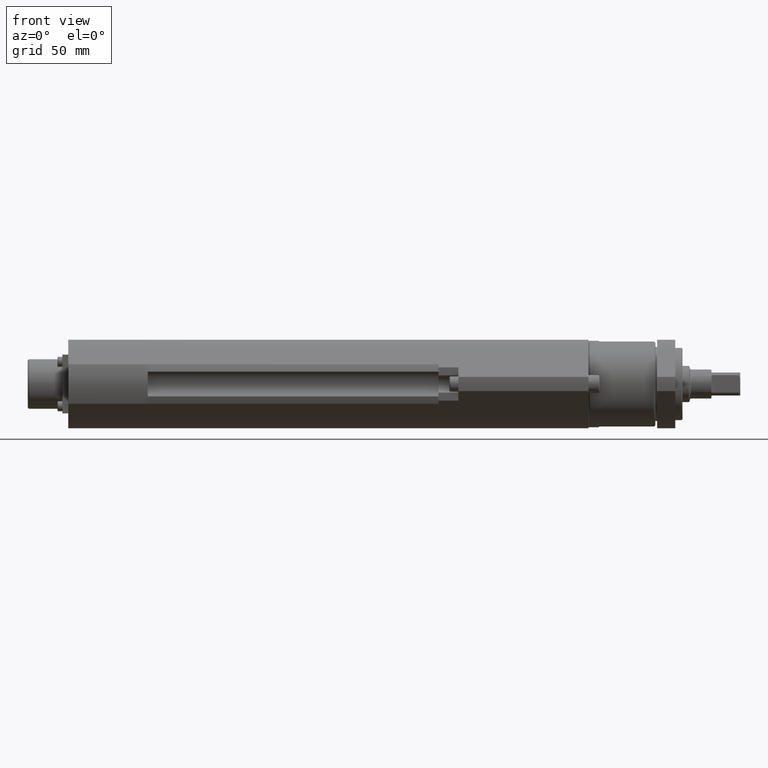
[diagram: clean part render]
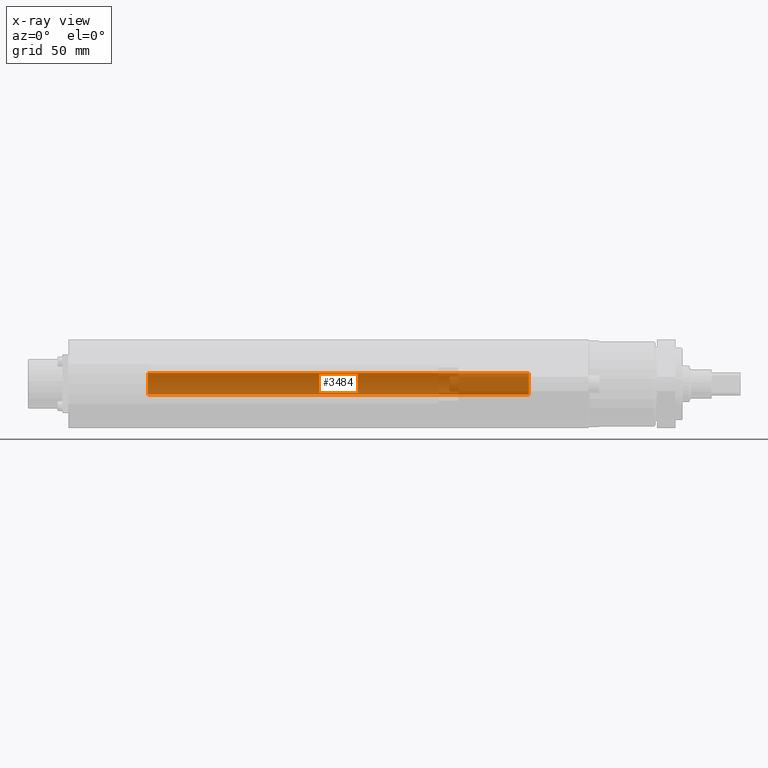
[diagram: x-ray — body ghosted, one internal face saturated and labeled with its STEP entity id]
A machine part, front view, then the same camera in x-ray: the body is ghosted and one INTERNAL B-rep face — a face not visible from any outside direction — is saturated and labeled: STEP entity #3484.
In plain terms, the highlighted planar face has unit normal (0, 1, 0).
Its self-contained STEP definition (entity closure, byte-faithful):
#203 = VECTOR ( 'NONE', #978, 1000.000000000000000 ) ;
#889 = DIRECTION ( 'NONE',  ( 1.156482317317871500E-015, 1.000000000000000000, 0.0000000000000000000 ) ) ;
#978 = DIRECTION ( 'NONE',  ( 1.000000000000000000, -1.156482317317871500E-015, -0.0000000000000000000 ) ) ;
#1363 = CARTESIAN_POINT ( 'NONE',  ( -292.0000000000000600, 39.00000000000024900, 5.999999999999999100 ) ) ;
#1506 = EDGE_LOOP ( 'NONE', ( #4043, #8765, #3807, #2769 ) ) ;
#1748 = VERTEX_POINT ( 'NONE', #2748 ) ;
#1831 = LINE ( 'NONE', #7069, #5665 ) ;
#1958 = VECTOR ( 'NONE', #8557, 1000.000000000000000 ) ;
#2748 = CARTESIAN_POINT ( 'NONE',  ( -81.00000000000000000, 39.00000000000000700, -6.000000000000000900 ) ) ;
#2769 = ORIENTED_EDGE ( 'NONE', *, *, #5150, .F. ) ;
#2943 = LINE ( 'NONE', #5200, #6546 ) ;
#3001 = PLANE ( 'NONE',  #5188 ) ;
#3030 = DIRECTION ( 'NONE',  ( -0.0000000000000000000, -0.0000000000000000000, 1.000000000000000000 ) ) ;
#3329 = CARTESIAN_POINT ( 'NONE',  ( -292.0000000000000600, 39.00000000000024900, -6.000000000000000900 ) ) ;
#3484 = ADVANCED_FACE ( 'NONE', ( #8139 ), #3001, .F. ) ;
#3807 = ORIENTED_EDGE ( 'NONE', *, *, #4050, .T. ) ;
#3839 = CARTESIAN_POINT ( 'NONE',  ( -313.6333076527839700, 39.00000000000027700, 5.999999999999999100 ) ) ;
#4043 = ORIENTED_EDGE ( 'NONE', *, *, #5865, .F. ) ;
#4050 = EDGE_CURVE ( 'NONE', #1748, #8446, #2943, .T. ) ;
#4429 = CARTESIAN_POINT ( 'NONE',  ( -81.00000000000000000, 39.00000000000000700, 5.999999999999999100 ) ) ;
#5150 = EDGE_CURVE ( 'NONE', #8703, #8446, #9056, .T. ) ;
#5165 = CARTESIAN_POINT ( 'NONE',  ( -313.6333076527839700, 39.00000000000027700, 5.999999999999999100 ) ) ;
#5188 = AXIS2_PLACEMENT_3D ( 'NONE', #5165, #889, #5891 ) ;
#5200 = CARTESIAN_POINT ( 'NONE',  ( -81.00000000000000000, 39.00000000000000700, 5.999999999999999100 ) ) ;
#5558 = LINE ( 'NONE', #1363, #1958 ) ;
#5608 = DIRECTION ( 'NONE',  ( 1.000000000000000000, -1.156482317317871500E-015, -0.0000000000000000000 ) ) ;
#5665 = VECTOR ( 'NONE', #5608, 1000.000000000000000 ) ;
#5865 = EDGE_CURVE ( 'NONE', #7887, #8703, #5558, .T. ) ;
#5891 = DIRECTION ( 'NONE',  ( -1.000000000000000000, 1.156482317317871500E-015, 0.0000000000000000000 ) ) ;
#6546 = VECTOR ( 'NONE', #3030, 1000.000000000000000 ) ;
#6728 = CARTESIAN_POINT ( 'NONE',  ( -292.0000000000000600, 39.00000000000024900, 5.999999999999999100 ) ) ;
#7069 = CARTESIAN_POINT ( 'NONE',  ( -313.6333076527839700, 39.00000000000027700, -6.000000000000000900 ) ) ;
#7357 = EDGE_CURVE ( 'NONE', #7887, #1748, #1831, .T. ) ;
#7887 = VERTEX_POINT ( 'NONE', #3329 ) ;
#8139 = FACE_OUTER_BOUND ( 'NONE', #1506, .T. ) ;
#8446 = VERTEX_POINT ( 'NONE', #4429 ) ;
#8557 = DIRECTION ( 'NONE',  ( 0.0000000000000000000, -0.0000000000000000000, 1.000000000000000000 ) ) ;
#8703 = VERTEX_POINT ( 'NONE', #6728 ) ;
#8765 = ORIENTED_EDGE ( 'NONE', *, *, #7357, .T. ) ;
#9056 = LINE ( 'NONE', #3839, #203 ) ;